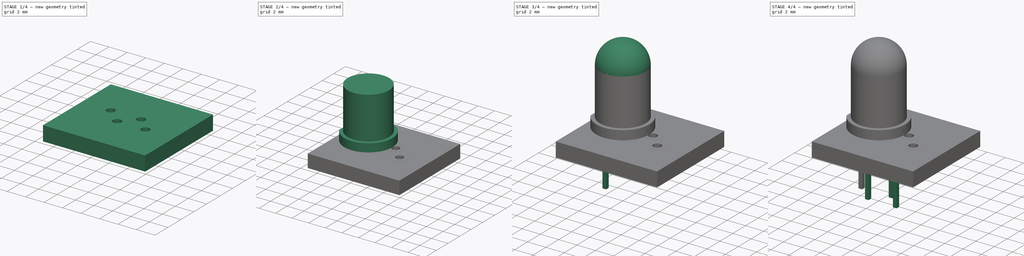
[diagram: build sequence overview — one tinted view per stage of 4, left to right]
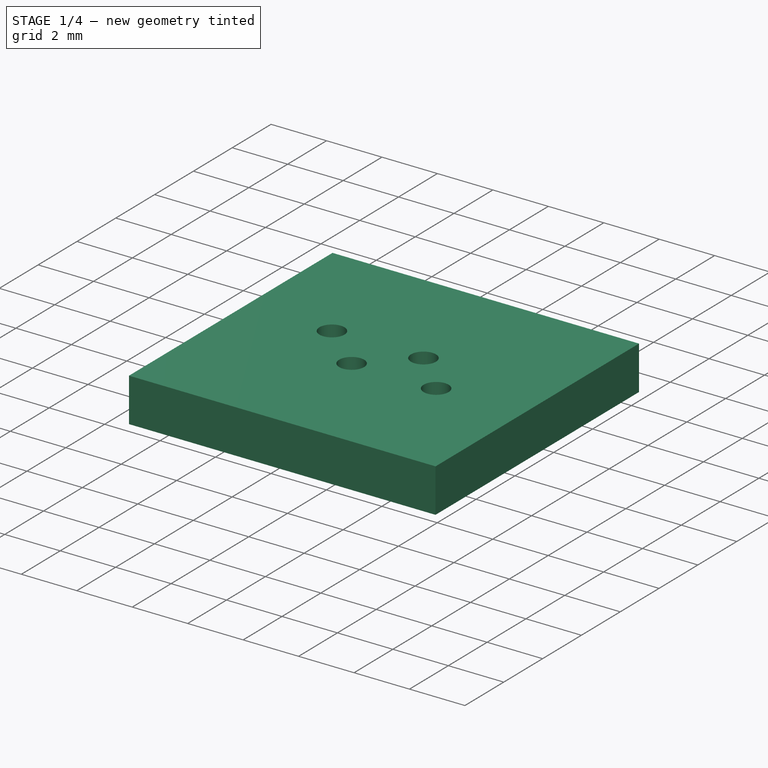
[diagram: stage 1 of 4 — iso view after this stage's code; geometry added in this stage tinted green]
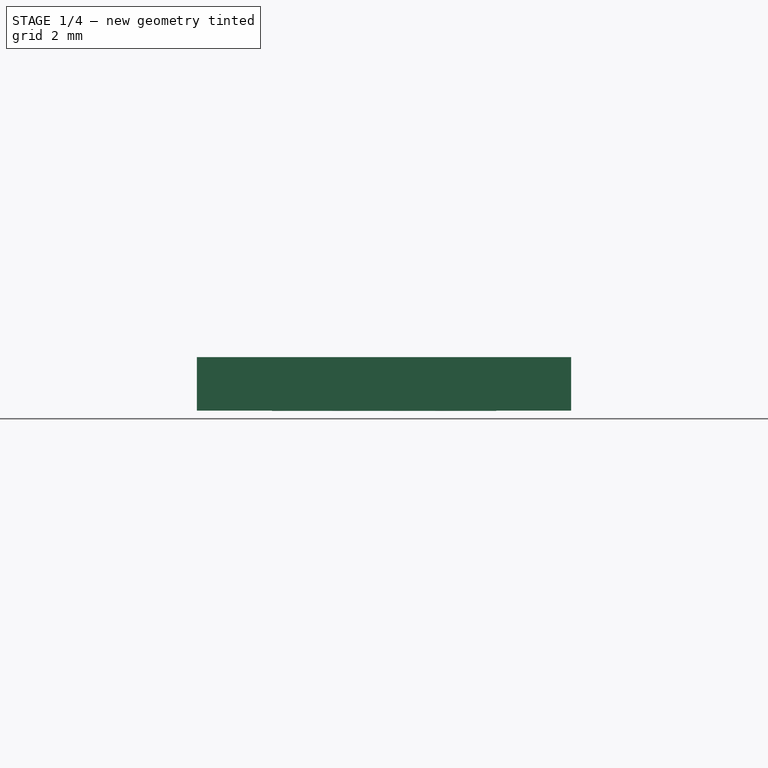
[diagram: stage 1 of 4 — front view after this stage's code; geometry added in this stage tinted green]
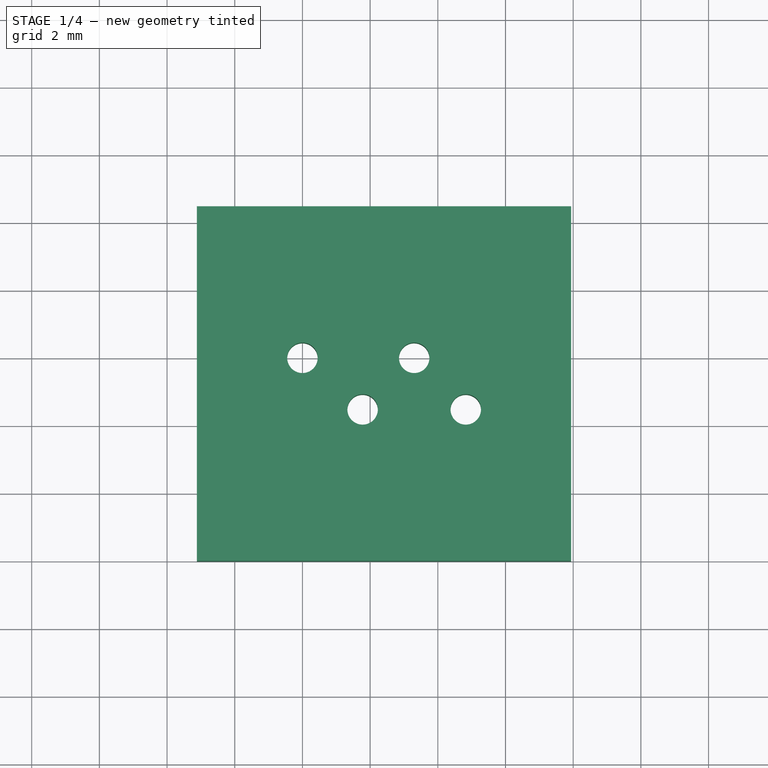
[diagram: stage 1 of 4 — top view after this stage's code; geometry added in this stage tinted green]
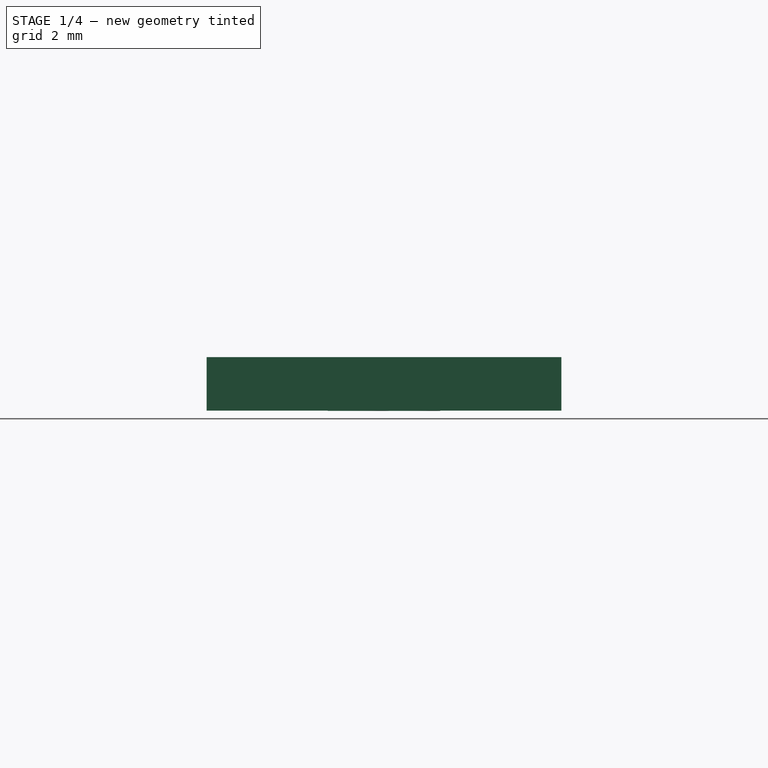
[diagram: stage 1 of 4 — right view after this stage's code; geometry added in this stage tinted green]
FCSTD DOCUMENT  (FreeCAD 0.18.4R)
Label: LED_D5.0mm-4_RGB_Staggered_Pins
License: All rights reserved
LicenseURL: http://en.wikipedia.org/wiki/All_rights_reserved
objects: Sketcher::SketchObject×13, Part::FeaturePython×7, PartDesign::Plane×5, PartDesign::AdditivePipe×4, PartDesign::Pad×2, PartDesign::Revolution×1, PartDesign::Body×1, App::Part×1, App::DocumentObjectGroup×1, Part::Feature×1
note: 41 computed .brp shape members not serialized (recipe doc carries the construction recipe); baked Part::Feature solids carry a one-line shape summary decoded from their .brp

FEATURE [Part::FeaturePython] BotPads  # a2plus imported part (geometry in sourceFile) (typed FeaturePython)
  fixedPosition = true
FEATURE [Part::FeaturePython] THPs  label="PTHs"  # a2plus imported part (geometry in sourceFile) (typed FeaturePython)
  fixedPosition = true
FEATURE [Part::FeaturePython] newPCB  label="Pcb"  # a2plus imported part (geometry in sourceFile) (typed FeaturePython)
  fixedPosition = true
FEATURE [App::DocumentObjectGroup] LED_D5_0mm_4_RGB_Staggered_Pins_fp
  Group = -> [FCrtYd_lines,FFab_lines,Filk_lines,TopPads,BotPads,THPs,newPCB]
FEATURE [Part::Feature] Shape  label="LED_D5.0mm-4_RGB_Staggered_Pins"
  shape: bbox 5.513 x 5.8 x 15.6 mm, 58 faces (baked)
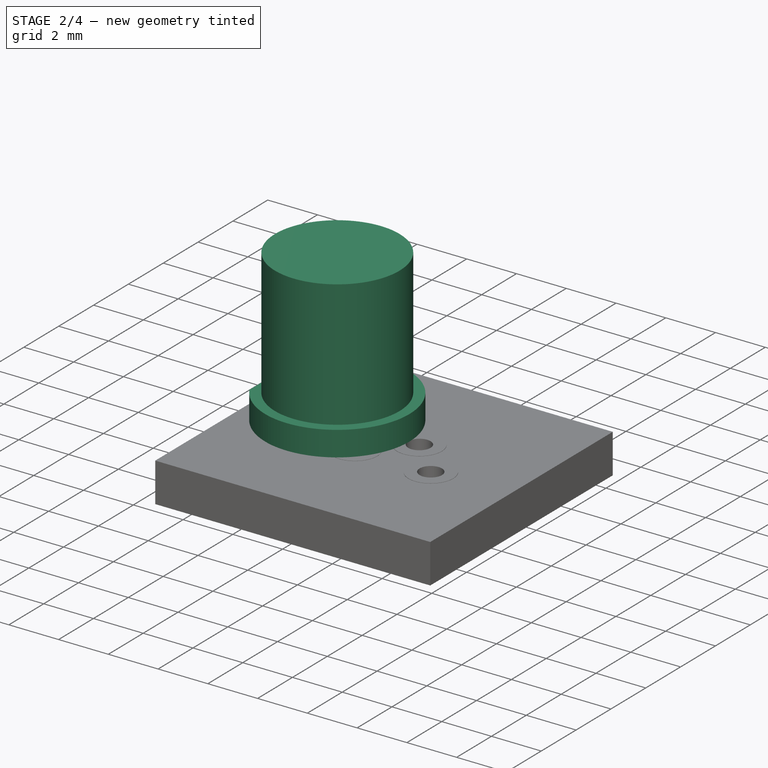
[diagram: stage 2 of 4 — iso view after this stage's code; geometry added in this stage tinted green]
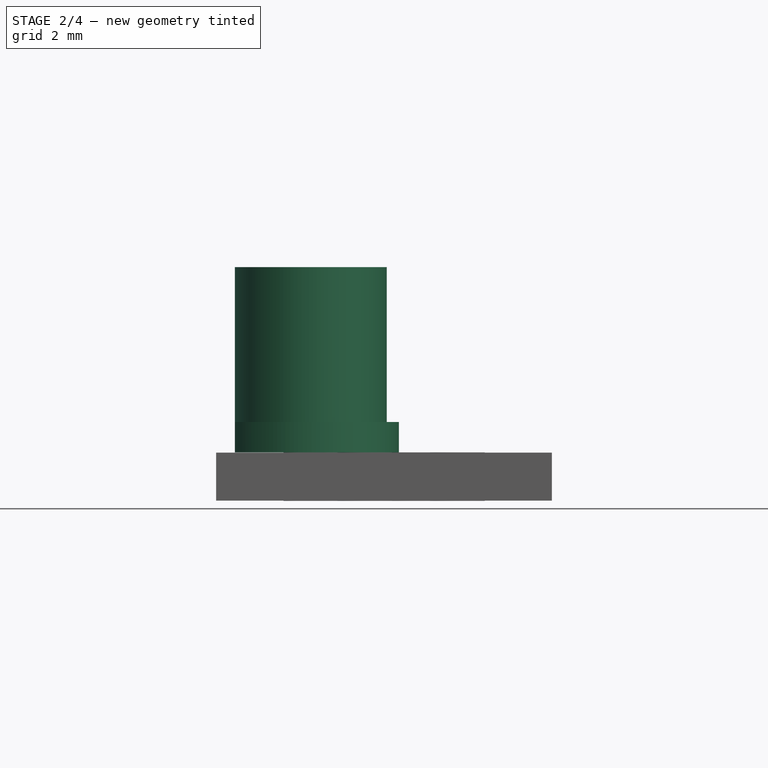
[diagram: stage 2 of 4 — front view after this stage's code; geometry added in this stage tinted green]
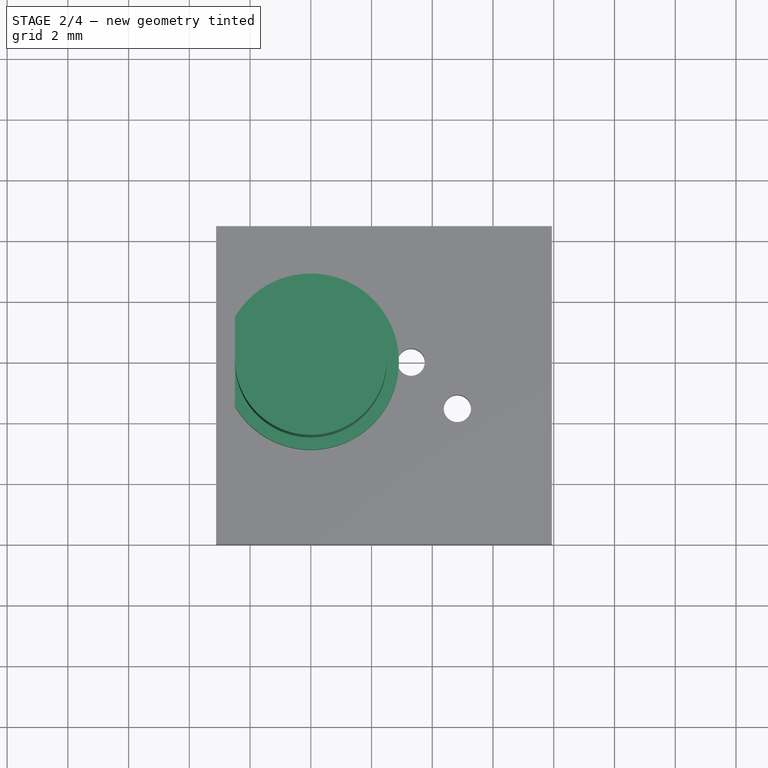
[diagram: stage 2 of 4 — top view after this stage's code; geometry added in this stage tinted green]
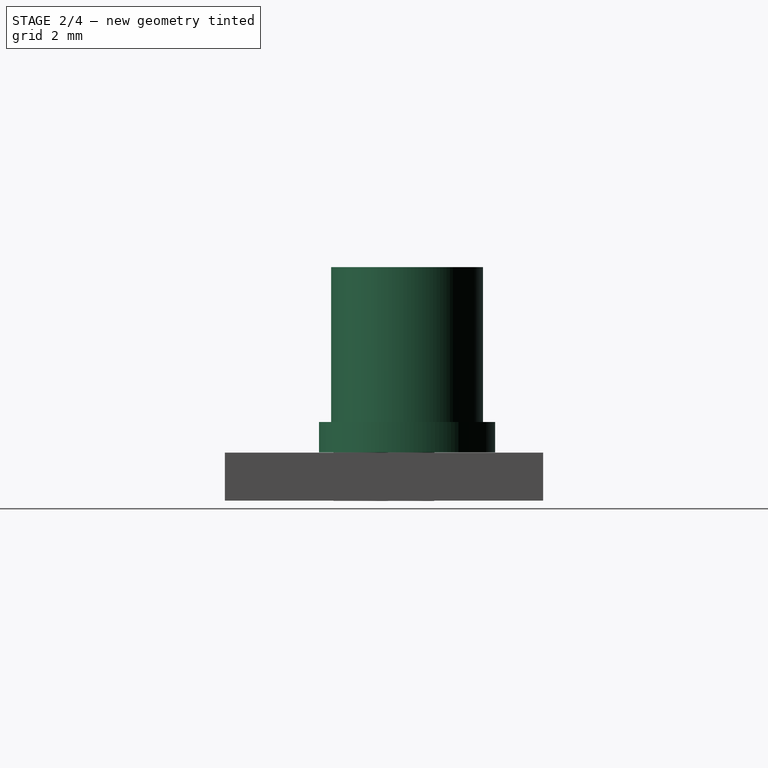
[diagram: stage 2 of 4 — right view after this stage's code; geometry added in this stage tinted green]
FEATURE [Sketcher::SketchObject] Sketch
  MapMode = 5
  Support = -> [XY_Plane]
  sketch-geometry (3):
    g0: ArcOfCircle CenterX=0 CenterY=0 CenterZ=0 NormalX=0 NormalY=0 NormalZ=1 AngleXU=0 Radius=2.9 StartAngle=3.67305 EndAngle=8.89332
    g1: LineSegment StartX=-2.5 StartY=-1.46969 StartZ=0 EndX=-2.5 EndY=1.46969 EndZ=0
    g2: Circle [constr] CenterX=0 CenterY=0 CenterZ=0 NormalX=0 NormalY=0 NormalZ=1 AngleXU=0 Radius=2.5
  constraints (8):
    c: Coincident(g0,g-1)
    c: Coincident(g1,g0)
    c: Coincident(g1,g0)
    c: Vertical(g1)
    c: Radius(g0) = 2.9
    c: Coincident(g2,g0)
    c: Radius(g2) = 2.5
    c: Tangent(g2,g1)
FEATURE [PartDesign::Pad] Pad
  Length = 1
  Length2 = 100
  Profile = -> Sketch
  Type = 0
FEATURE [Sketcher::SketchObject] Sketch001
  MapMode = 5
  Placement = pos=(0,0,1) rot=(0,0,1;0rad)
  Support = -> [Pad]
  sketch-geometry (1):
    g0: Circle CenterX=0 CenterY=0 CenterZ=0 NormalX=0 NormalY=0 NormalZ=1 AngleXU=0 Radius=2.5
  constraints (2):
    c: Coincident(g0,g-1)
    c: Radius(g0) = 2.5
FEATURE [PartDesign::Pad] Pad001
  BaseFeature = -> Pad
  Length = 5.1
  Length2 = 100
  Profile = -> Sketch001
  Type = 0
FEATURE [PartDesign::Body] Body
  Group = -> [Sketch,Pad,Sketch001,Pad001,Sketch002,Revolution,Sketch003,DatumPlane,Sketch004,DatumPlane001,Sketch005,Sketch006,AdditivePipe,DatumPlane002,Sketch007,Sketch008,AdditivePipe001,DatumPlane003,Sketch009,Sketch010,AdditivePipe002,DatumPlane004,Sketch011,Sketch012,AdditivePipe003]
  Origin = -> Origin
  Tip = -> AdditivePipe003
FEATURE [App::Part] Part
  Group = -> [Body]
  Origin = -> Origin001
FEATURE [Part::FeaturePython] FCrtYd_lines  label="FCrtYd"  # a2plus imported part (geometry in sourceFile) (typed FeaturePython)
  fixedPosition = true
FEATURE [Part::FeaturePython] FFab_lines  label="FFab"  # a2plus imported part (geometry in sourceFile) (typed FeaturePython)
  fixedPosition = true
FEATURE [Part::FeaturePython] Filk_lines  label="FrontSilk"  # a2plus imported part (geometry in sourceFile) (typed FeaturePython)
  fixedPosition = true
FEATURE [Part::FeaturePython] TopPads  # a2plus imported part (geometry in sourceFile) (typed FeaturePython)
  fixedPosition = true
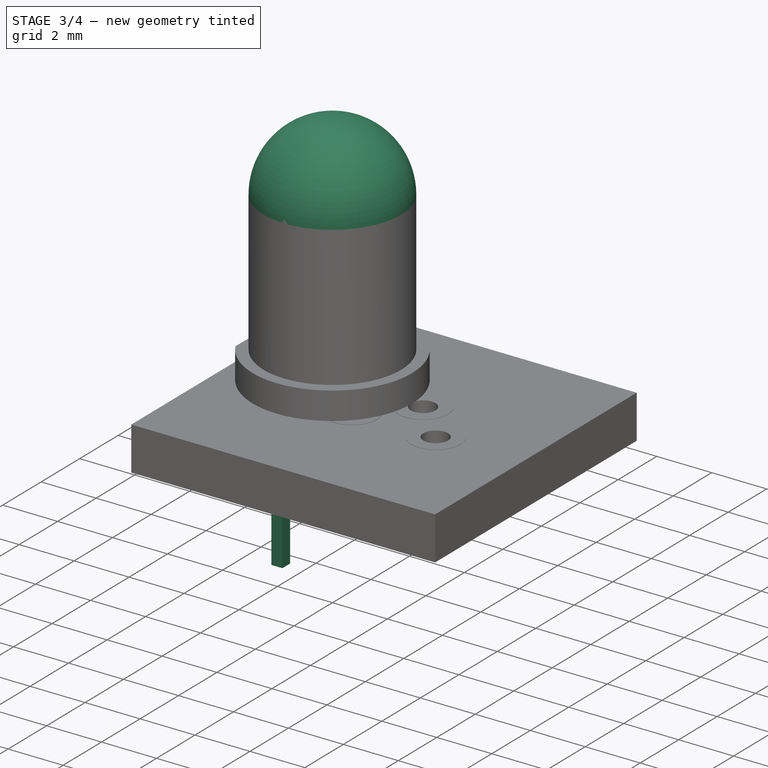
[diagram: stage 3 of 4 — iso view after this stage's code; geometry added in this stage tinted green]
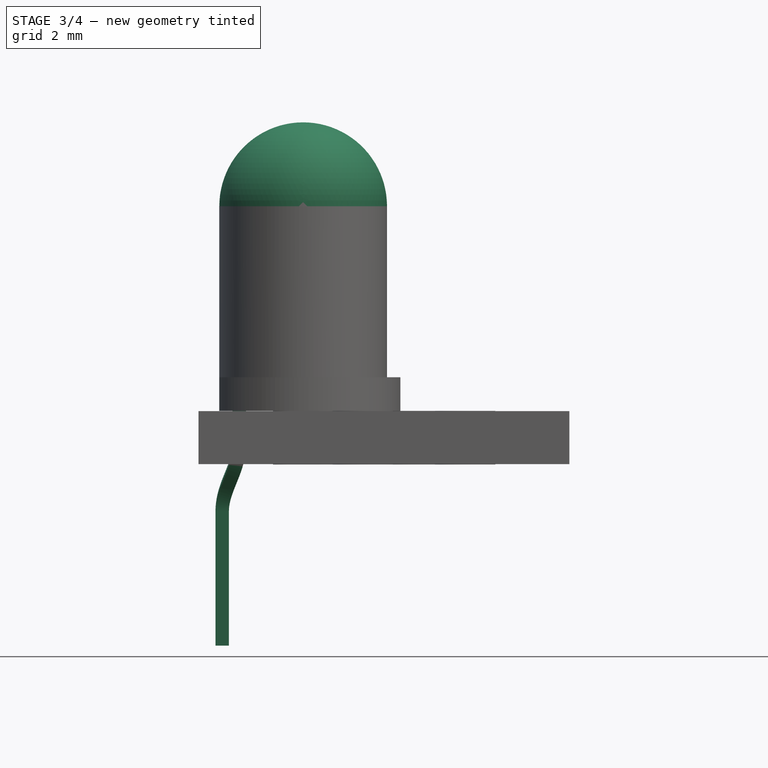
[diagram: stage 3 of 4 — front view after this stage's code; geometry added in this stage tinted green]
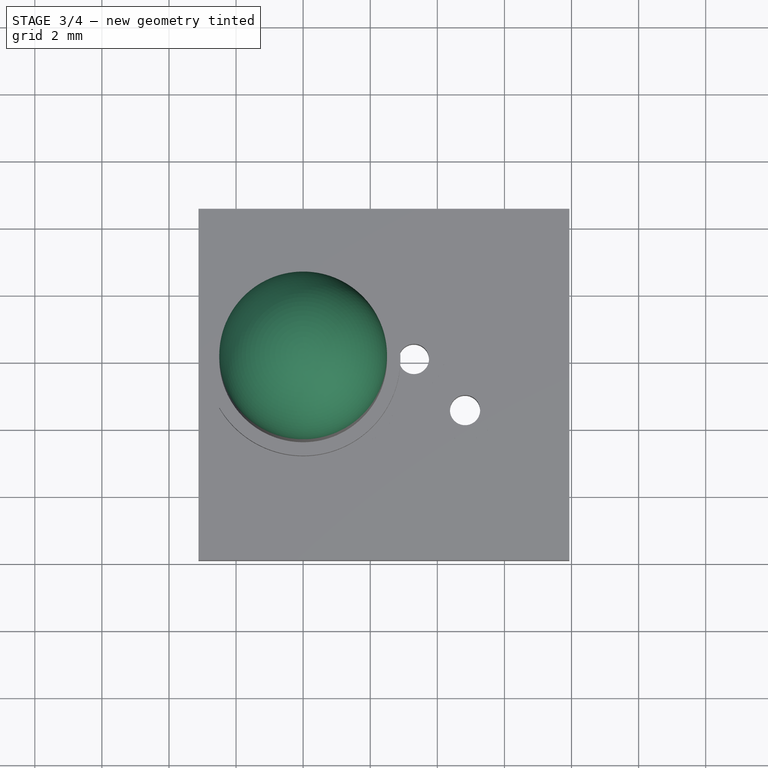
[diagram: stage 3 of 4 — top view after this stage's code; geometry added in this stage tinted green]
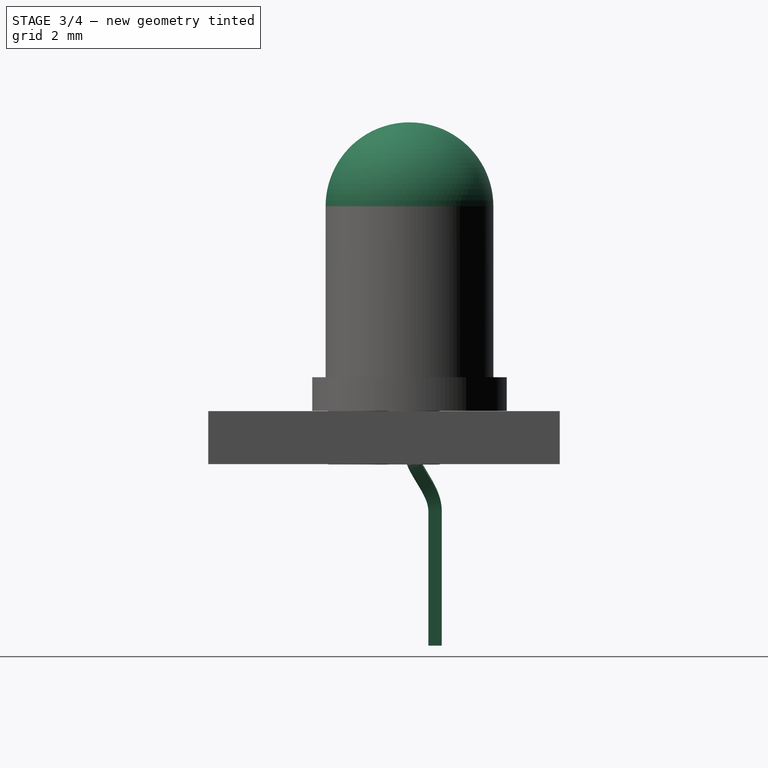
[diagram: stage 3 of 4 — right view after this stage's code; geometry added in this stage tinted green]
FEATURE [Sketcher::SketchObject] Sketch002
  ExternalGeometry = -> [Pad001]
  MapMode = 5
  Placement = pos=(0,0,0) rot=(0.57735,0.57735,0.57735;2.0944rad)
  Support = -> [YZ_Plane]
  sketch-geometry (4):
    g0: GeomPoint X=0 Y=6.1 Z=0
    g1: LineSegment StartX=0 StartY=6.1 StartZ=0 EndX=-2.5 EndY=6.1 EndZ=0
    g2: ArcOfCircle CenterX=0 CenterY=6.1 CenterZ=0 NormalX=0 NormalY=0 NormalZ=1 AngleXU=0 Radius=2.5 StartAngle=1.5708 EndAngle=3.14159
    g3: LineSegment StartX=2e-16 StartY=8.6 StartZ=0 EndX=0 EndY=6.1 EndZ=0
  constraints (10):
    c: PointOnObject(g0,g-3)
    c: PointOnObject(g0,g-2)
    c: Coincident(g1,g0)
    c: Horizontal(g1)
    c: Distance(g1) = 2.5
    c: Coincident(g2,g0)
    c: PointOnObject(g2,g-2)
    c: Coincident(g2,g1)
    c: Coincident(g3,g2)
    c: Coincident(g3,g0)
FEATURE [PartDesign::Revolution] Revolution
  Angle = 360
  Axis = (-2e-16,3e-16,1)
  Base = (0,0,0)
  BaseFeature = -> Pad001
  Profile = -> Sketch002
  ReferenceAxis = -> Sketch002 [V_Axis]
FEATURE [Sketcher::SketchObject] Sketch003
  ExternalGeometry = -> [Revolution]
  MapMode = 5
  Placement = pos=(0,0,0) rot=(1,0,0;3.14159rad)
  Support = -> [Revolution]
  sketch-geometry (32):
    g0: LineSegment StartX=-2.105 StartY=0.2 StartZ=0 EndX=-1.705 EndY=0.2 EndZ=0
    g1: LineSegment StartX=-1.705 StartY=0.2 StartZ=0 EndX=-1.705 EndY=-0.2 EndZ=0
    g2: LineSegment StartX=-1.705 StartY=-0.2 StartZ=0 EndX=-2.105 EndY=-0.2 EndZ=0
    g3: LineSegment StartX=-2.105 StartY=-0.2 StartZ=0 EndX=-2.105 EndY=0.2 EndZ=0
    g4: LineSegment StartX=-0.835 StartY=0.2 StartZ=0 EndX=-0.435 EndY=0.2 EndZ=0
    g5: LineSegment StartX=-0.435 StartY=0.2 StartZ=0 EndX=-0.435 EndY=-0.2 EndZ=0
    g6: LineSegment StartX=-0.435 StartY=-0.2 StartZ=0 EndX=-0.835 EndY=-0.2 EndZ=0
    g7: LineSegment StartX=-0.835 StartY=-0.2 StartZ=0 EndX=-0.835 EndY=0.2 EndZ=0
    g8: LineSegment StartX=0.435 StartY=-0.2 StartZ=0 EndX=0.835 EndY=-0.2 EndZ=0
    g9: LineSegment StartX=0.835 StartY=-0.2 StartZ=0 EndX=0.835 EndY=0.2 EndZ=0
    g10: LineSegment StartX=0.835 StartY=0.2 StartZ=0 EndX=0.435 EndY=0.2 EndZ=0
    g11: LineSegment StartX=0.435 StartY=0.2 StartZ=0 EndX=0.435 EndY=-0.2 EndZ=0
    g12: LineSegment StartX=1.705 StartY=0.2 StartZ=0 EndX=2.105 EndY=0.2 EndZ=0
    g13: LineSegment StartX=2.105 StartY=0.2 StartZ=0 EndX=2.105 EndY=-0.2 EndZ=0
    g14: LineSegment StartX=2.105 StartY=-0.2 StartZ=0 EndX=1.705 EndY=-0.2 EndZ=0
    g15: LineSegment StartX=1.705 StartY=-0.2 StartZ=0 EndX=1.705 EndY=0.2 EndZ=0
    g16: LineSegment [constr] StartX=-1.705 StartY=0.2 StartZ=0 EndX=-0.835 EndY=0.2 EndZ=0
    g17: LineSegment [constr] StartX=-0.435 StartY=0.2 StartZ=0 EndX=0.435 EndY=0.2 EndZ=0
    g18: LineSegment [constr] StartX=0.835 StartY=0.2 StartZ=0 EndX=1.705 EndY=0.2 EndZ=0
    g19: LineSegment StartX=-2.105 StartY=0.2 StartZ=0 EndX=-1.705 EndY=-0.2 EndZ=0
    g20: LineSegment StartX=-1.705 StartY=0.2 StartZ=0 EndX=-1.905 EndY=0 EndZ=0
    g21: LineSegment StartX=-0.835 StartY=0.2 StartZ=0 EndX=-0.435 EndY=-0.2 EndZ=0
    g22: LineSegment StartX=-0.435 StartY=0.2 StartZ=0 EndX=-0.635 EndY=0 EndZ=0
    g23: LineSegment [constr] StartX=-0.435 StartY=0.2 StartZ=0 EndX=0 EndY=0 EndZ=0
    g24: LineSegment [constr] StartX=0.435 StartY=-0.2 StartZ=0 EndX=0 EndY=0 EndZ=0
    g25: LineSegment [constr] StartX=0 StartY=0 StartZ=0 EndX=0.435 EndY=0.2 EndZ=0
    g26: LineSegment StartX=0.435 StartY=0.2 StartZ=0 EndX=0.635 EndY=0 EndZ=0
    g27: LineSegment StartX=0.635 StartY=0 StartZ=0 EndX=0.835 EndY=0.2 EndZ=0
    g28: LineSegment StartX=0.635 StartY=0 StartZ=0 EndX=0.835 EndY=-0.2 EndZ=0
    g29: LineSegment StartX=1.705 StartY=0.2 StartZ=0 EndX=1.905 EndY=0 EndZ=0
    g30: LineSegment StartX=1.905 StartY=0 StartZ=0 EndX=2.105 EndY=0.2 EndZ=0
    g31: LineSegment StartX=1.905 StartY=0 StartZ=0 EndX=1.705 EndY=-0.2 EndZ=0
  constraints (84):
    c: Coincident(g0,g1)
    c: Coincident(g1,g2)
    c: Coincident(g2,g3)
    c: Coincident(g3,g0)
    c: Horizontal(g0)
    c: Horizontal(g2)
    c: Vertical(g1)
    c: Vertical(g3)
    c: Coincident(g4,g5)
    c: Coincident(g5,g6)
    c: Coincident(g6,g7)
    c: Coincident(g7,g4)
    c: Horizontal(g4)
    c: Horizontal(g6)
    c: Vertical(g5)
    c: Vertical(g7)
    c: Coincident(g8,g9)
    c: Coincident(g9,g10)
    c: Coincident(g10,g11)
    c: Coincident(g11,g8)
    c: Horizontal(g8)
    c: Horizontal(g10)
    c: Vertical(g9)
    c: Vertical(g11)
    c: Coincident(g12,g13)
    c: Coincident(g13,g14)
    c: Coincident(g14,g15)
    c: Coincident(g15,g12)
    c: Horizontal(g12)
    c: Horizontal(g14)
    c: Vertical(g13)
    c: Vertical(g15)
    c: Equal(g12,g15)
    c: Equal(g15,g10)
    c: Equal(g10,g11)
    c: Equal(g11,g4)
    c: Equal(g4,g7)
    c: Equal(g7,g0)
    c: Equal(g0,g3)
    c: Coincident(g16,g0)
    c: Coincident(g16,g4)
    c: Coincident(g17,g4)
    c: Coincident(g17,g10)
    c: Coincident(g18,g9)
    c: Coincident(g18,g12)
    c: Equal(g16,g17)
    c: Equal(g17,g18)
    c: Horizontal(g18)
    c: Horizontal(g17)
    c: Horizontal(g16)
    c: Coincident(g19,g0)
    c: Coincident(g19,g1)
    c: Coincident(g20,g0)
    c: PointOnObject(g20,g19)
    c: Perpendicular(g20,g19)
    c: Coincident(g21,g4)
    c: Coincident(g21,g5)
    c: Coincident(g22,g4)
    c: PointOnObject(g22,g21)
    c: Perpendicular(g22,g21)
    c: DistanceX(g20,g22) = 1.27
    c: Distance(g3) = 0.4
    c: Coincident(g23,g4)
    c: Coincident(g23,g-1)
    c: Coincident(g24,g8)
    c: Coincident(g24,g-1)
    c: Coincident(g25,g-1)
    c: Coincident(g25,g10)
    c: Equal(g25,g24)
    c: Equal(g24,g23)
    c: Coincident(g26,g10)
    c: Coincident(g27,g26)
    c: Coincident(g27,g9)
    c: Coincident(g28,g26)
    c: Coincident(g28,g8)
    c: Coincident(g29,g12)
    c: Coincident(g30,g29)
    c: Coincident(g30,g12)
    c: Coincident(g31,g29)
    c: Coincident(g31,g14)
    c: Equal(g29,g30)
    c: Equal(g30,g31)
    c: Equal(g26,g27)
    c: Equal(g27,g28)
FEATURE [PartDesign::Plane] DatumPlane
  AttachmentOffset = pos=(0,0,7) rot=(0,0,1;0rad)
  Length = 24
  MapMode = 5
  Placement = pos=(0,0,-7) rot=(1,0,0;3.14159rad)
  ResizeMode = 0
  Support = -> [Revolution]
  Width = 24
FEATURE [Sketcher::SketchObject] Sketch004
  MapMode = 5
  Placement = pos=(0,0,-7) rot=(1,0,0;3.14159rad)
  Support = -> [DatumPlane]
  sketch-geometry (34):
    g0: LineSegment StartX=-2.613 StartY=-0.562 StartZ=0 EndX=-2.213 EndY=-0.562 EndZ=0
    g1: LineSegment StartX=-2.213 StartY=-0.562 StartZ=0 EndX=-2.213 EndY=-0.962 EndZ=0
    g2: LineSegment StartX=-2.213 StartY=-0.962 StartZ=0 EndX=-2.613 EndY=-0.962 EndZ=0
    g3: LineSegment StartX=-2.613 StartY=-0.962 StartZ=0 EndX=-2.613 EndY=-0.562 EndZ=0
    g4: LineSegment StartX=0.689 StartY=-0.562 StartZ=0 EndX=1.089 EndY=-0.562 EndZ=0
    g5: LineSegment StartX=1.089 StartY=-0.562 StartZ=0 EndX=1.089 EndY=-0.962 EndZ=0
    g6: LineSegment StartX=1.089 StartY=-0.962 StartZ=0 EndX=0.689 EndY=-0.962 EndZ=0
    g7: LineSegment StartX=0.689 StartY=-0.962 StartZ=0 EndX=0.689 EndY=-0.562 EndZ=0
    g8: LineSegment StartX=2.213 StartY=0.962 StartZ=0 EndX=2.613 EndY=0.962 EndZ=0
    g9: LineSegment StartX=2.613 StartY=0.962 StartZ=0 EndX=2.613 EndY=0.562 EndZ=0
    g10: LineSegment StartX=2.613 StartY=0.562 StartZ=0 EndX=2.213 EndY=0.562 EndZ=0
    g11: LineSegment StartX=2.213 StartY=0.562 StartZ=0 EndX=2.213 EndY=0.962 EndZ=0
    g12: LineSegment StartX=-0.835 StartY=0.562 StartZ=0 EndX=-0.435 EndY=0.562 EndZ=0
    g13: LineSegment StartX=-0.435 StartY=0.562 StartZ=0 EndX=-0.435 EndY=0.962 EndZ=0
    g14: LineSegment StartX=-0.435 StartY=0.962 StartZ=0 EndX=-0.835 EndY=0.962 EndZ=0
    g15: LineSegment StartX=-0.835 StartY=0.962 StartZ=0 EndX=-0.835 EndY=0.562 EndZ=0
    g16: LineSegment StartX=-2.613 StartY=-0.562 StartZ=0 EndX=-2.413 EndY=-0.762 EndZ=0
    g17: LineSegment StartX=-2.213 StartY=-0.562 StartZ=0 EndX=-2.413 EndY=-0.762 EndZ=0
    g18: LineSegment StartX=-2.413 StartY=-0.762 StartZ=0 EndX=-2.213 EndY=-0.962 EndZ=0
    g19: LineSegment StartX=0.689 StartY=-0.562 StartZ=0 EndX=0.889 EndY=-0.762 EndZ=0
    g20: LineSegment StartX=0.889 StartY=-0.762 StartZ=0 EndX=1.089 EndY=-0.962 EndZ=0
    g21: LineSegment StartX=0.889 StartY=-0.762 StartZ=0 EndX=1.089 EndY=-0.562 EndZ=0
    g22: LineSegment StartX=-0.835 StartY=0.962 StartZ=0 EndX=-0.635 EndY=0.762 EndZ=0
    g23: LineSegment StartX=-0.635 StartY=0.762 StartZ=0 EndX=-0.435 EndY=0.962 EndZ=0
    g24: LineSegment StartX=-0.635 StartY=0.762 StartZ=0 EndX=-0.435 EndY=0.562 EndZ=0
    g25: LineSegment StartX=2.213 StartY=0.962 StartZ=0 EndX=2.413 EndY=0.762 EndZ=0
    g26: LineSegment StartX=2.413 StartY=0.762 StartZ=0 EndX=2.213 EndY=0.562 EndZ=0
    g27: LineSegment StartX=2.413 StartY=0.762 StartZ=0 EndX=2.613 EndY=0.962 EndZ=0
    g28: LineSegment [constr] StartX=0.889 StartY=-0.762 StartZ=0 EndX=-2.413 EndY=-0.762 EndZ=0
    g29: LineSegment [constr] StartX=-0.635 StartY=0.762 StartZ=0 EndX=2.413 EndY=0.762 EndZ=0
    g30: LineSegment [constr] StartX=-2.413 StartY=-0.762 StartZ=0 EndX=0 EndY=1e-16 EndZ=0
    g31: LineSegment [constr] StartX=0 StartY=0 StartZ=0 EndX=2.413 EndY=0.762 EndZ=0
    g32: LineSegment [constr] StartX=0.889 StartY=-0.762 StartZ=0 EndX=-0.635 EndY=0.762 EndZ=0
    g33: LineSegment [constr] StartX=-0.635 StartY=0.762 StartZ=0 EndX=-2.413 EndY=-0.762 EndZ=0
  constraints (88):
    c: Coincident(g0,g1)
    c: Coincident(g1,g2)
    c: Coincident(g2,g3)
    c: Coincident(g3,g0)
    c: Horizontal(g0)
    c: Horizontal(g2)
    c: Vertical(g1)
    c: Vertical(g3)
    c: Coincident(g4,g5)
    c: Coincident(g5,g6)
    c: Coincident(g6,g7)
    c: Coincident(g7,g4)
    c: Horizontal(g4)
    c: Horizontal(g6)
    c: Vertical(g5)
    c: Vertical(g7)
    c: Coincident(g8,g9)
    c: Coincident(g9,g10)
    c: Coincident(g10,g11)
    c: Coincident(g11,g8)
    c: Horizontal(g8)
    c: Horizontal(g10)
    c: Vertical(g9)
    c: Vertical(g11)
    c: Coincident(g12,g13)
    c: Coincident(g13,g14)
    c: Coincident(g14,g15)
    c: Coincident(g15,g12)
    c: Horizontal(g12)
    c: Horizontal(g14)
    c: Vertical(g13)
    c: Vertical(g15)
    c: Equal(g14,g15)
    c: Equal(g15,g3)
    c: Equal(g3,g0)
    c: Equal(g0,g7)
    c: Equal(g7,g4)
    c: Equal(g4,g11)
    c: Equal(g11,g8)
    c: Distance(g3) = 0.4
    c: Coincident(g16,g0)
    c: Coincident(g17,g0)
    c: Coincident(g17,g16)
    c: Coincident(g18,g16)
    c: Coincident(g18,g1)
    c: Equal(g17,g18)
    c: Equal(g18,g16)
    c: Coincident(g19,g4)
    c: Coincident(g20,g19)
    c: Coincident(g20,g5)
    c: Coincident(g21,g19)
    c: Coincident(g21,g4)
    c: Equal(g20,g21)
    c: Equal(g21,g19)
    c: Coincident(g22,g14)
    c: Coincident(g23,g22)
    c: Coincident(g23,g13)
    c: Coincident(g24,g22)
    c: Coincident(g24,g12)
    c: Equal(g23,g24)
    c: Equal(g24,g22)
    c: Coincident(g25,g8)
    c: Coincident(g26,g25)
    c: Coincident(g26,g10)
    c: Coincident(g27,g25)
    c: Coincident(g27,g8)
    c: Equal(g27,g25)
    c: Equal(g25,g26)
    c: Coincident(g28,g19)
    c: Coincident(g28,g16)
    c: Coincident(g29,g22)
    c: Coincident(g29,g25)
    c: Horizontal(g29)
    c: Horizontal(g28)
    c: Coincident(g30,g16)
    c: Coincident(g31,g30)
    c: Coincident(g31,g25)
    c: Equal(g31,g30)
    c: Parallel(g31,g30)
    c: Coincident(g-1,g30)
    c: Coincident(g32,g19)
    c: Coincident(g32,g22)
    c: Coincident(g33,g22)
    c: Coincident(g33,g16)
    c: DistanceY(g33,g33) = 1.524
    c: DistanceX(g16,g22) = 1.778
    c: DistanceX(g22,g19) = 1.524
    c: DistanceX(g19,g25) = 1.524
FEATURE [PartDesign::Plane] DatumPlane001
  AttachmentOffset = pos=(0,0,0) rot=(0,1,0;1.5708rad)
  Length = 35.4059
  MapMode = 51
  Placement = pos=(-1.905,0,0) rot=(0.315235,0.694026,-0.647268;3.90709rad)
  ResizeMode = 0
  Support = -> [Sketch003,Sketch004]
  Width = 28.7396
FEATURE [Sketcher::SketchObject] Sketch005
  ExternalGeometry = -> [Sketch004,Sketch003]
  MapMode = 5
  Placement = pos=(-1.905,1e-16,0) rot=(0.315235,0.694026,-0.647268;3.90709rad)
  Support = -> [DatumPlane001]
  sketch-geometry (11):
    g0: LineSegment StartX=0 StartY=0 StartZ=0 EndX=-0.129724 EndY=0.99155 EndZ=0
    g1: LineSegment StartX=2.2e-15 StartY=7.05965 StartZ=0 EndX=0.518898 EndY=3.09345 EndZ=0
    g2-g5: Circle [constr] x4 (B-spline internal-alignment scaffolding for g6; pole/knot coordinates omitted)
    g6: BSplineCurve PolesCount=4 KnotsCount=2 Degree=3 IsPeriodic=0
    g7: GeomPoint [constr] X=-0.129724 Y=0.99155 Z=0
    g8: GeomPoint [constr] X=0.518898 Y=3.09345 Z=0
    g9: LineSegment [constr] StartX=0.616191 StartY=2.34979 StartZ=0 EndX=0.518898 EndY=3.09345 EndZ=0
    g10: LineSegment [constr] StartX=-0.129724 StartY=0.99155 StartZ=0 EndX=-0.227018 EndY=1.73521 EndZ=0
  constraints (23):
    c: Perpendicular(g0,g-6)
    c: Perpendicular(g1,g-3)
    c: Coincident(g-4,g1)
    c: Coincident(g-1,g0)
    c: Distance(g0) = 1
    c: Coincident(g6,g0)
    c: Radius(g2) = 0.2
    c: Equal(g2,g3)
    c: Equal(g2,g4)
    c: Equal(g2,g5)
    c: Coincident(g6,g1)
    c: InternalAlignment(g2-g5 -> g6) x4
    c: InternalAlignment(g7,g6)
    c: InternalAlignment(g8,g6)
    c: Coincident(g9,g4)
    c: Coincident(g9,g1)
    c: Coincident(g10,g0)
    c: Coincident(g10,g3)
    c: Parallel(g10,g0)
    c: Parallel(g9,g1)
    c: Distance(g9) = 0.75
    c: Equal(g9,g10)
    c: Distance(g1) = 4
FEATURE [Sketcher::SketchObject] Sketch006
  ExternalGeometry = -> [Revolution]
  MapMode = 5
  Placement = pos=(0,0,0) rot=(1,0,0;3.14159rad)
  Support = -> [Revolution]
  sketch-geometry (32):
    g0: LineSegment StartX=-2.105 StartY=0.2 StartZ=0 EndX=-1.705 EndY=0.2 EndZ=0
    g1: LineSegment StartX=-1.705 StartY=0.2 StartZ=0 EndX=-1.705 EndY=-0.2 EndZ=0
    g2: LineSegment StartX=-1.705 StartY=-0.2 StartZ=0 EndX=-2.105 EndY=-0.2 EndZ=0
    g3: LineSegment StartX=-2.105 StartY=-0.2 StartZ=0 EndX=-2.105 EndY=0.2 EndZ=0
    g4: LineSegment [constr] StartX=-0.835 StartY=0.2 StartZ=0 EndX=-0.435 EndY=0.2 EndZ=0
    g5: LineSegment [constr] StartX=-0.435 StartY=0.2 StartZ=0 EndX=-0.435 EndY=-0.2 EndZ=0
    g6: LineSegment [constr] StartX=-0.435 StartY=-0.2 StartZ=0 EndX=-0.835 EndY=-0.2 EndZ=0
    g7: LineSegment [constr] StartX=-0.835 StartY=-0.2 StartZ=0 EndX=-0.835 EndY=0.2 EndZ=0
    g8: LineSegment [constr] StartX=0.435 StartY=-0.2 StartZ=0 EndX=0.835 EndY=-0.2 EndZ=0
    g9: LineSegment [constr] StartX=0.835 StartY=-0.2 StartZ=0 EndX=0.835 EndY=0.2 EndZ=0
    g10: LineSegment [constr] StartX=0.835 StartY=0.2 StartZ=0 EndX=0.435 EndY=0.2 EndZ=0
    g11: LineSegment [constr] StartX=0.435 StartY=0.2 StartZ=0 EndX=0.435 EndY=-0.2 EndZ=0
    g12: LineSegment [constr] StartX=1.705 StartY=0.2 StartZ=0 EndX=2.105 EndY=0.2 EndZ=0
    g13: LineSegment [constr] StartX=2.105 StartY=0.2 StartZ=0 EndX=2.105 EndY=-0.2 EndZ=0
    g14: LineSegment [constr] StartX=2.105 StartY=-0.2 StartZ=0 EndX=1.705 EndY=-0.2 EndZ=0
    g15: LineSegment [constr] StartX=1.705 StartY=-0.2 StartZ=0 EndX=1.705 EndY=0.2 EndZ=0
    g16: LineSegment [constr] StartX=-1.705 StartY=0.2 StartZ=0 EndX=-0.835 EndY=0.2 EndZ=0
    g17: LineSegment [constr] StartX=-0.435 StartY=0.2 StartZ=0 EndX=0.435 EndY=0.2 EndZ=0
    g18: LineSegment [constr] StartX=0.835 StartY=0.2 StartZ=0 EndX=1.705 EndY=0.2 EndZ=0
    g19: LineSegment [constr] StartX=-2.105 StartY=0.2 StartZ=0 EndX=-1.705 EndY=-0.2 EndZ=0
    g20: LineSegment [constr] StartX=-1.705 StartY=0.2 StartZ=0 EndX=-1.905 EndY=0 EndZ=0
    g21: LineSegment [constr] StartX=-0.835 StartY=0.2 StartZ=0 EndX=-0.435 EndY=-0.2 EndZ=0
    g22: LineSegment [constr] StartX=-0.435 StartY=0.2 StartZ=0 EndX=-0.635 EndY=0 EndZ=0
    g23: LineSegment [constr] StartX=-0.435 StartY=0.2 StartZ=0 EndX=0 EndY=0 EndZ=0
    g24: LineSegment [constr] StartX=0.435 StartY=-0.2 StartZ=0 EndX=0 EndY=0 EndZ=0
    g25: LineSegment [constr] StartX=0 StartY=0 StartZ=0 EndX=0.435 EndY=0.2 EndZ=0
    g26: LineSegment [constr] StartX=0.435 StartY=0.2 StartZ=0 EndX=0.635 EndY=0 EndZ=0
    g27: LineSegment [constr] StartX=0.635 StartY=0 StartZ=0 EndX=0.835 EndY=0.2 EndZ=0
    g28: LineSegment [constr] StartX=0.635 StartY=0 StartZ=0 EndX=0.835 EndY=-0.2 EndZ=0
    g29: LineSegment [constr] StartX=1.705 StartY=0.2 StartZ=0 EndX=1.905 EndY=0 EndZ=0
    g30: LineSegment [constr] StartX=1.905 StartY=0 StartZ=0 EndX=2.105 EndY=0.2 EndZ=0
    g31: LineSegment [constr] StartX=1.905 StartY=0 StartZ=0 EndX=1.705 EndY=-0.2 EndZ=0
  constraints (84):
    c: Coincident(g0,g1)
    c: Coincident(g1,g2)
    c: Coincident(g2,g3)
    c: Coincident(g3,g0)
    c: Horizontal(g0)
    c: Horizontal(g2)
    c: Vertical(g1)
    c: Vertical(g3)
    c: Coincident(g4,g5)
    c: Coincident(g5,g6)
    c: Coincident(g6,g7)
    c: Coincident(g7,g4)
    c: Horizontal(g4)
    c: Horizontal(g6)
    c: Vertical(g5)
    c: Vertical(g7)
    c: Coincident(g8,g9)
    c: Coincident(g9,g10)
    c: Coincident(g10,g11)
    c: Coincident(g11,g8)
    c: Horizontal(g8)
    c: Horizontal(g10)
    c: Vertical(g9)
    c: Vertical(g11)
    c: Coincident(g12,g13)
    c: Coincident(g13,g14)
    c: Coincident(g14,g15)
    c: Coincident(g15,g12)
    c: Horizontal(g12)
    c: Horizontal(g14)
    c: Vertical(g13)
    c: Vertical(g15)
    c: Equal(g12,g15)
    c: Equal(g15,g10)
    c: Equal(g10,g11)
    c: Equal(g11,g4)
    c: Equal(g4,g7)
    c: Equal(g7,g0)
    c: Equal(g0,g3)
    c: Coincident(g16,g0)
    c: Coincident(g16,g4)
    c: Coincident(g17,g4)
    c: Coincident(g17,g10)
    c: Coincident(g18,g9)
    c: Coincident(g18,g12)
    c: Equal(g16,g17)
    c: Equal(g17,g18)
    c: Horizontal(g18)
    c: Horizontal(g17)
    c: Horizontal(g16)
    c: Coincident(g19,g0)
    c: Coincident(g19,g1)
    c: Coincident(g20,g0)
    c: PointOnObject(g20,g19)
    c: Perpendicular(g20,g19)
    c: Coincident(g21,g4)
    c: Coincident(g21,g5)
    c: Coincident(g22,g4)
    c: PointOnObject(g22,g21)
    c: Perpendicular(g22,g21)
    c: DistanceX(g20,g22) = 1.27
    c: Distance(g3) = 0.4
    c: Coincident(g23,g4)
    c: Coincident(g23,g-1)
    c: Coincident(g24,g8)
    c: Coincident(g24,g-1)
    c: Coincident(g25,g-1)
    c: Coincident(g25,g10)
    c: Equal(g25,g24)
    c: Equal(g24,g23)
    c: Coincident(g26,g10)
    c: Coincident(g27,g26)
    c: Coincident(g27,g9)
    c: Coincident(g28,g26)
    c: Coincident(g28,g8)
    c: Coincident(g29,g12)
    c: Coincident(g30,g29)
    c: Coincident(g30,g12)
    c: Coincident(g31,g29)
    c: Coincident(g31,g14)
    c: Equal(g29,g30)
    c: Equal(g30,g31)
    c: Equal(g26,g27)
    c: Equal(g27,g28)
FEATURE [PartDesign::AdditivePipe] AdditivePipe
  AuxilleryCurvelinear = true
  AuxillerySpineTangent = false
  BaseFeature = -> Revolution
  Binormal = (0,0,0)
  Mode = 0
  Profile = -> Sketch006
  Spine = -> Sketch005
  SpineTangent = false
  Transformation = 0
  Transition = 0
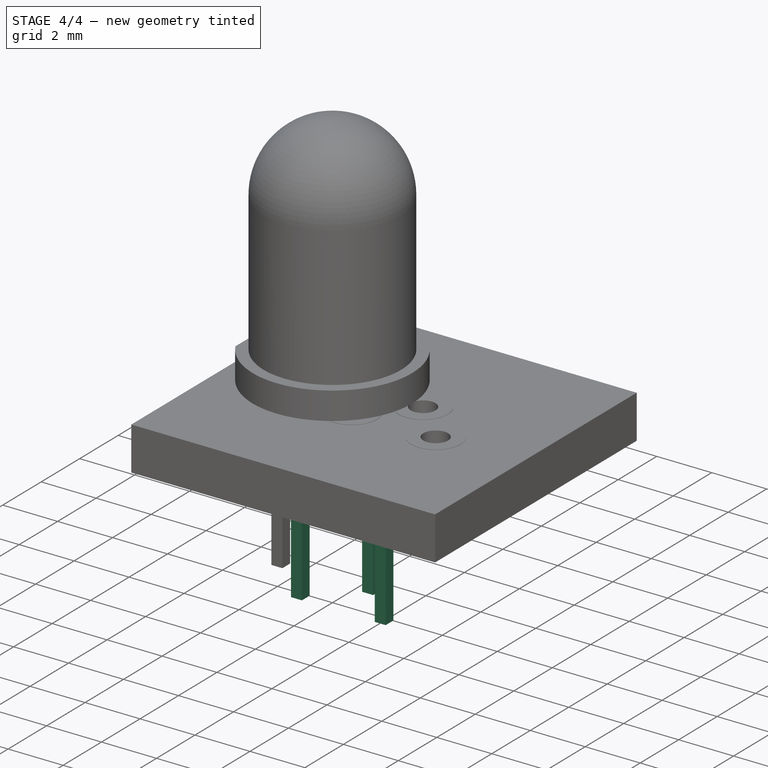
[diagram: stage 4 of 4 — iso view after this stage's code; geometry added in this stage tinted green]
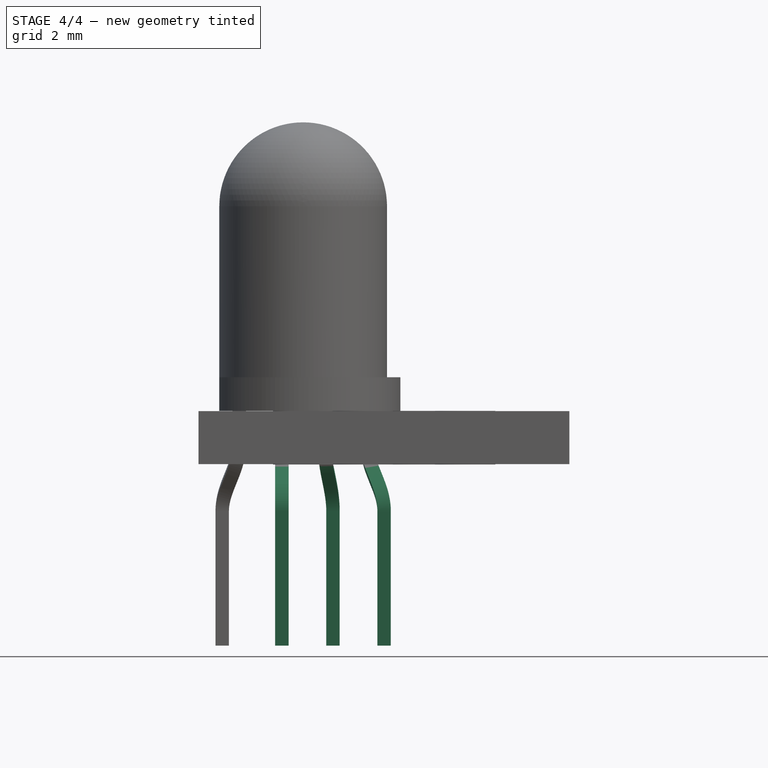
[diagram: stage 4 of 4 — front view after this stage's code; geometry added in this stage tinted green]
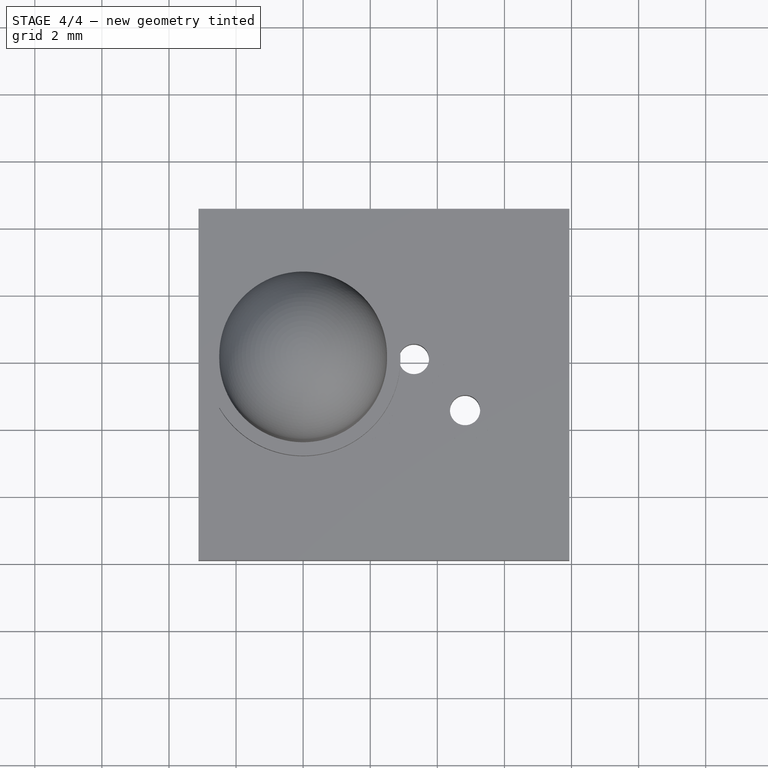
[diagram: stage 4 of 4 — top view after this stage's code; geometry added in this stage tinted green]
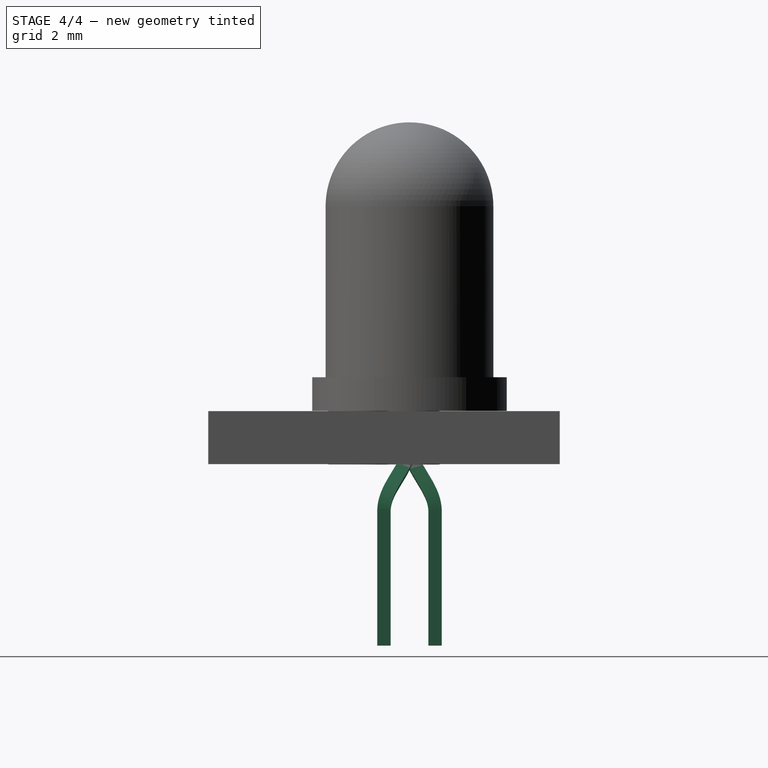
[diagram: stage 4 of 4 — right view after this stage's code; geometry added in this stage tinted green]
FEATURE [PartDesign::Plane] DatumPlane002
  AttachmentOffset = pos=(0,0,0) rot=(0,1,0;1.5708rad)
  Length = 26.4563
  MapMode = 51
  Placement = pos=(-0.635,0,0) rot=(-0.597113,0.535641,-0.597113;2.15809rad)
  ResizeMode = 0
  Support = -> [Sketch003,Sketch004]
  Width = 26.4563
FEATURE [Sketcher::SketchObject] Sketch007
  ExternalGeometry = -> [Sketch004,Sketch003]
  MapMode = 5
  Placement = pos=(-0.635,0,0) rot=(0.597113,-0.535641,0.597113;4.1251rad)
  Support = -> [DatumPlane002]
  sketch-geometry (11):
    g0: LineSegment StartX=0 StartY=0 StartZ=0 EndX=-0.108218 EndY=0.994127 EndZ=0
    g1: LineSegment StartX=-8e-16 StartY=7.04135 StartZ=0 EndX=0.432871 EndY=3.06484 EndZ=0
    g2-g5: Circle [constr] x4 (B-spline internal-alignment scaffolding for g6; pole/knot coordinates omitted)
    g6: BSplineCurve PolesCount=4 KnotsCount=2 Degree=3 IsPeriodic=0
    g7: GeomPoint [constr] X=-0.108218 Y=0.994127 Z=0
    g8: GeomPoint [constr] X=0.432871 Y=3.06484 Z=0
    g9: LineSegment [constr] StartX=0.432871 StartY=3.06484 StartZ=0 EndX=0.514035 EndY=2.31925 EndZ=0
    g10: LineSegment [constr] StartX=-0.108218 StartY=0.994127 StartZ=0 EndX=-0.189381 EndY=1.73972 EndZ=0
  constraints (23):
    c: Coincident(g0,g-1)
    c: Coincident(g1,g-4)
    c: Perpendicular(g-4,g1)
    c: Perpendicular(g0,g-6)
    c: Coincident(g6,g0)
    c: Radius(g2) = 0.1
    c: Equal(g2,g3)
    c: Equal(g2,g4)
    c: Equal(g2,g5)
    c: Coincident(g6,g1)
    c: InternalAlignment(g2-g5 -> g6) x4
    c: InternalAlignment(g7,g6)
    c: InternalAlignment(g8,g6)
    c: Coincident(g9,g1)
    c: Coincident(g9,g4)
    c: Coincident(g10,g0)
    c: Coincident(g10,g3)
    c: Equal(g10,g9)
    c: Parallel(g9,g1)
    c: Parallel(g0,g10)
    c: Distance(g9) = 0.75
    c: Distance(g1) = 4
    c: Distance(g0) = 1
FEATURE [Sketcher::SketchObject] Sketch008
  ExternalGeometry = -> [Revolution]
  MapMode = 5
  Placement = pos=(0,0,0) rot=(1,0,0;3.14159rad)
  Support = -> [Revolution]
  sketch-geometry (32):
    g0: LineSegment [constr] StartX=-2.105 StartY=0.2 StartZ=0 EndX=-1.705 EndY=0.2 EndZ=0
    g1: LineSegment [constr] StartX=-1.705 StartY=0.2 StartZ=0 EndX=-1.705 EndY=-0.2 EndZ=0
    g2: LineSegment [constr] StartX=-1.705 StartY=-0.2 StartZ=0 EndX=-2.105 EndY=-0.2 EndZ=0
    g3: LineSegment [constr] StartX=-2.105 StartY=-0.2 StartZ=0 EndX=-2.105 EndY=0.2 EndZ=0
    g4: LineSegment StartX=-0.835 StartY=0.2 StartZ=0 EndX=-0.435 EndY=0.2 EndZ=0
    g5: LineSegment StartX=-0.435 StartY=0.2 StartZ=0 EndX=-0.435 EndY=-0.2 EndZ=0
    g6: LineSegment StartX=-0.435 StartY=-0.2 StartZ=0 EndX=-0.835 EndY=-0.2 EndZ=0
    g7: LineSegment StartX=-0.835 StartY=-0.2 StartZ=0 EndX=-0.835 EndY=0.2 EndZ=0
    g8: LineSegment [constr] StartX=0.435 StartY=-0.2 StartZ=0 EndX=0.835 EndY=-0.2 EndZ=0
    g9: LineSegment [constr] StartX=0.835 StartY=-0.2 StartZ=0 EndX=0.835 EndY=0.2 EndZ=0
    g10: LineSegment [constr] StartX=0.835 StartY=0.2 StartZ=0 EndX=0.435 EndY=0.2 EndZ=0
    g11: LineSegment [constr] StartX=0.435 StartY=0.2 StartZ=0 EndX=0.435 EndY=-0.2 EndZ=0
    g12: LineSegment [constr] StartX=1.705 StartY=0.2 StartZ=0 EndX=2.105 EndY=0.2 EndZ=0
    g13: LineSegment [constr] StartX=2.105 StartY=0.2 StartZ=0 EndX=2.105 EndY=-0.2 EndZ=0
    g14: LineSegment [constr] StartX=2.105 StartY=-0.2 StartZ=0 EndX=1.705 EndY=-0.2 EndZ=0
    g15: LineSegment [constr] StartX=1.705 StartY=-0.2 StartZ=0 EndX=1.705 EndY=0.2 EndZ=0
    g16: LineSegment [constr] StartX=-1.705 StartY=0.2 StartZ=0 EndX=-0.835 EndY=0.2 EndZ=0
    g17: LineSegment [constr] StartX=-0.435 StartY=0.2 StartZ=0 EndX=0.435 EndY=0.2 EndZ=0
    g18: LineSegment [constr] StartX=0.835 StartY=0.2 StartZ=0 EndX=1.705 EndY=0.2 EndZ=0
    g19: LineSegment [constr] StartX=-2.105 StartY=0.2 StartZ=0 EndX=-1.705 EndY=-0.2 EndZ=0
    g20: LineSegment [constr] StartX=-1.705 StartY=0.2 StartZ=0 EndX=-1.905 EndY=0 EndZ=0
    g21: LineSegment [constr] StartX=-0.835 StartY=0.2 StartZ=0 EndX=-0.435 EndY=-0.2 EndZ=0
    g22: LineSegment [constr] StartX=-0.435 StartY=0.2 StartZ=0 EndX=-0.635 EndY=0 EndZ=0
    g23: LineSegment [constr] StartX=-0.435 StartY=0.2 StartZ=0 EndX=0 EndY=0 EndZ=0
    g24: LineSegment [constr] StartX=0.435 StartY=-0.2 StartZ=0 EndX=0 EndY=0 EndZ=0
    g25: LineSegment [constr] StartX=0 StartY=0 StartZ=0 EndX=0.435 EndY=0.2 EndZ=0
    g26: LineSegment [constr] StartX=0.435 StartY=0.2 StartZ=0 EndX=0.635 EndY=0 EndZ=0
    g27: LineSegment [constr] StartX=0.635 StartY=0 StartZ=0 EndX=0.835 EndY=0.2 EndZ=0
    g28: LineSegment [constr] StartX=0.635 StartY=0 StartZ=0 EndX=0.835 EndY=-0.2 EndZ=0
    g29: LineSegment [constr] StartX=1.705 StartY=0.2 StartZ=0 EndX=1.905 EndY=0 EndZ=0
    g30: LineSegment [constr] StartX=1.905 StartY=0 StartZ=0 EndX=2.105 EndY=0.2 EndZ=0
    g31: LineSegment [constr] StartX=1.905 StartY=0 StartZ=0 EndX=1.705 EndY=-0.2 EndZ=0
  constraints (84):
    c: Coincident(g0,g1)
    c: Coincident(g1,g2)
    c: Coincident(g2,g3)
    c: Coincident(g3,g0)
    c: Horizontal(g0)
    c: Horizontal(g2)
    c: Vertical(g1)
    c: Vertical(g3)
    c: Coincident(g4,g5)
    c: Coincident(g5,g6)
    c: Coincident(g6,g7)
    c: Coincident(g7,g4)
    c: Horizontal(g4)
    c: Horizontal(g6)
    c: Vertical(g5)
    c: Vertical(g7)
    c: Coincident(g8,g9)
    c: Coincident(g9,g10)
    c: Coincident(g10,g11)
    c: Coincident(g11,g8)
    c: Horizontal(g8)
    c: Horizontal(g10)
    c: Vertical(g9)
    c: Vertical(g11)
    c: Coincident(g12,g13)
    c: Coincident(g13,g14)
    c: Coincident(g14,g15)
    c: Coincident(g15,g12)
    c: Horizontal(g12)
    c: Horizontal(g14)
    c: Vertical(g13)
    c: Vertical(g15)
    c: Equal(g12,g15)
    c: Equal(g15,g10)
    c: Equal(g10,g11)
    c: Equal(g11,g4)
    c: Equal(g4,g7)
    c: Equal(g7,g0)
    c: Equal(g0,g3)
    c: Coincident(g16,g0)
    c: Coincident(g16,g4)
    c: Coincident(g17,g4)
    c: Coincident(g17,g10)
    c: Coincident(g18,g9)
    c: Coincident(g18,g12)
    c: Equal(g16,g17)
    c: Equal(g17,g18)
    c: Horizontal(g18)
    c: Horizontal(g17)
    c: Horizontal(g16)
    c: Coincident(g19,g0)
    c: Coincident(g19,g1)
    c: Coincident(g20,g0)
    c: PointOnObject(g20,g19)
    c: Perpendicular(g20,g19)
    c: Coincident(g21,g4)
    c: Coincident(g21,g5)
    c: Coincident(g22,g4)
    c: PointOnObject(g22,g21)
    c: Perpendicular(g22,g21)
    c: DistanceX(g20,g22) = 1.27
    c: Distance(g3) = 0.4
    c: Coincident(g23,g4)
    c: Coincident(g23,g-1)
    c: Coincident(g24,g8)
    c: Coincident(g24,g-1)
    c: Coincident(g25,g-1)
    c: Coincident(g25,g10)
    c: Equal(g25,g24)
    c: Equal(g24,g23)
    c: Coincident(g26,g10)
    c: Coincident(g27,g26)
    c: Coincident(g27,g9)
    c: Coincident(g28,g26)
    c: Coincident(g28,g8)
    c: Coincident(g29,g12)
    c: Coincident(g30,g29)
    c: Coincident(g30,g12)
    c: Coincident(g31,g29)
    c: Coincident(g31,g14)
    c: Equal(g29,g30)
    c: Equal(g30,g31)
    c: Equal(g26,g27)
    c: Equal(g27,g28)
FEATURE [PartDesign::AdditivePipe] AdditivePipe001
  AuxilleryCurvelinear = true
  AuxillerySpineTangent = false
  BaseFeature = -> AdditivePipe
  Binormal = (0,0,0)
  Mode = 0
  Profile = -> Sketch008
  Spine = -> Sketch007
  SpineTangent = false
  Transformation = 0
  Transition = 0
FEATURE [PartDesign::Plane] DatumPlane003
  AttachmentOffset = pos=(0,0,0) rot=(1,0,0;1.5708rad)
  Length = 27.7485
  MapMode = 50
  Placement = pos=(0.635,0,0) rot=(0.215125,0.971138,-0.103015;1.58152rad)
  ResizeMode = 0
  Support = -> [Sketch003,Sketch004]
  Width = 32.4082
FEATURE [Sketcher::SketchObject] Sketch009
  ExternalGeometry = -> [Sketch004,Sketch003]
  MapMode = 5
  Placement = pos=(0.635,0,0) rot=(0.215125,0.971138,-0.103015;1.58152rad)
  Support = -> [DatumPlane003]
  sketch-geometry (11):
    g0: LineSegment StartX=7.04593 StartY=-8e-16 StartZ=0 EndX=3.07201 EndY=0.45599 EndZ=0
    g1: LineSegment StartX=0 StartY=0 StartZ=0 EndX=0.993481 EndY=-0.113997 EndZ=0
    g2-g5: Circle [constr] x4 (B-spline internal-alignment scaffolding for g6; pole/knot coordinates omitted)
    g6: BSplineCurve PolesCount=4 KnotsCount=2 Degree=3 IsPeriodic=0
    g7: GeomPoint [constr] X=0.993481 Y=-0.113997 Z=0
    g8: GeomPoint [constr] X=3.07201 Y=0.45599 Z=0
    g9: LineSegment [constr] StartX=3.07201 StartY=0.45599 StartZ=0 EndX=2.3269 EndY=0.541488 EndZ=0
    g10: LineSegment [constr] StartX=1.73859 StartY=-0.199496 StartZ=0 EndX=0.993481 EndY=-0.113997 EndZ=0
  constraints (23):
    c: Coincident(g0,g-4)
    c: Coincident(g1,g-1)
    c: Perpendicular(g-3,g0)
    c: Perpendicular(g-6,g1)
    c: Coincident(g6,g1)
    c: Radius(g2) = 0.1
    c: Equal(g2,g3)
    c: Equal(g2,g4)
    c: Equal(g2,g5)
    c: Coincident(g6,g0)
    c: InternalAlignment(g2-g5 -> g6) x4
    c: InternalAlignment(g7,g6)
    c: InternalAlignment(g8,g6)
    c: Coincident(g9,g0)
    c: Coincident(g9,g4)
    c: Coincident(g10,g3)
    c: Coincident(g10,g1)
    c: Equal(g10,g9)
    c: Distance(g0) = 4
    c: Parallel(g0,g9)
    c: Parallel(g10,g1)
    c: Distance(g9) = 0.75
    c: Distance(g1) = 1
FEATURE [Sketcher::SketchObject] Sketch010
  ExternalGeometry = -> [Revolution]
  MapMode = 5
  Placement = pos=(0,0,0) rot=(1,0,0;3.14159rad)
  Support = -> [Revolution]
  sketch-geometry (32):
    g0: LineSegment [constr] StartX=-2.105 StartY=0.2 StartZ=0 EndX=-1.705 EndY=0.2 EndZ=0
    g1: LineSegment [constr] StartX=-1.705 StartY=0.2 StartZ=0 EndX=-1.705 EndY=-0.2 EndZ=0
    g2: LineSegment [constr] StartX=-1.705 StartY=-0.2 StartZ=0 EndX=-2.105 EndY=-0.2 EndZ=0
    g3: LineSegment [constr] StartX=-2.105 StartY=-0.2 StartZ=0 EndX=-2.105 EndY=0.2 EndZ=0
    g4: LineSegment [constr] StartX=-0.835 StartY=0.2 StartZ=0 EndX=-0.435 EndY=0.2 EndZ=0
    g5: LineSegment [constr] StartX=-0.435 StartY=0.2 StartZ=0 EndX=-0.435 EndY=-0.2 EndZ=0
    g6: LineSegment [constr] StartX=-0.435 StartY=-0.2 StartZ=0 EndX=-0.835 EndY=-0.2 EndZ=0
    g7: LineSegment [constr] StartX=-0.835 StartY=-0.2 StartZ=0 EndX=-0.835 EndY=0.2 EndZ=0
    g8: LineSegment StartX=0.435 StartY=-0.2 StartZ=0 EndX=0.835 EndY=-0.2 EndZ=0
    g9: LineSegment StartX=0.835 StartY=-0.2 StartZ=0 EndX=0.835 EndY=0.2 EndZ=0
    g10: LineSegment StartX=0.835 StartY=0.2 StartZ=0 EndX=0.435 EndY=0.2 EndZ=0
    g11: LineSegment StartX=0.435 StartY=0.2 StartZ=0 EndX=0.435 EndY=-0.2 EndZ=0
    g12: LineSegment [constr] StartX=1.705 StartY=0.2 StartZ=0 EndX=2.105 EndY=0.2 EndZ=0
    g13: LineSegment [constr] StartX=2.105 StartY=0.2 StartZ=0 EndX=2.105 EndY=-0.2 EndZ=0
    g14: LineSegment [constr] StartX=2.105 StartY=-0.2 StartZ=0 EndX=1.705 EndY=-0.2 EndZ=0
    g15: LineSegment [constr] StartX=1.705 StartY=-0.2 StartZ=0 EndX=1.705 EndY=0.2 EndZ=0
    g16: LineSegment [constr] StartX=-1.705 StartY=0.2 StartZ=0 EndX=-0.835 EndY=0.2 EndZ=0
    g17: LineSegment [constr] StartX=-0.435 StartY=0.2 StartZ=0 EndX=0.435 EndY=0.2 EndZ=0
    g18: LineSegment [constr] StartX=0.835 StartY=0.2 StartZ=0 EndX=1.705 EndY=0.2 EndZ=0
    g19: LineSegment [constr] StartX=-2.105 StartY=0.2 StartZ=0 EndX=-1.705 EndY=-0.2 EndZ=0
    g20: LineSegment [constr] StartX=-1.705 StartY=0.2 StartZ=0 EndX=-1.905 EndY=0 EndZ=0
    g21: LineSegment [constr] StartX=-0.835 StartY=0.2 StartZ=0 EndX=-0.435 EndY=-0.2 EndZ=0
    g22: LineSegment [constr] StartX=-0.435 StartY=0.2 StartZ=0 EndX=-0.635 EndY=0 EndZ=0
    g23: LineSegment [constr] StartX=-0.435 StartY=0.2 StartZ=0 EndX=0 EndY=0 EndZ=0
    g24: LineSegment [constr] StartX=0.435 StartY=-0.2 StartZ=0 EndX=0 EndY=0 EndZ=0
    g25: LineSegment [constr] StartX=0 StartY=0 StartZ=0 EndX=0.435 EndY=0.2 EndZ=0
    g26: LineSegment [constr] StartX=0.435 StartY=0.2 StartZ=0 EndX=0.635 EndY=0 EndZ=0
    g27: LineSegment [constr] StartX=0.635 StartY=0 StartZ=0 EndX=0.835 EndY=0.2 EndZ=0
    g28: LineSegment [constr] StartX=0.635 StartY=0 StartZ=0 EndX=0.835 EndY=-0.2 EndZ=0
    g29: LineSegment [constr] StartX=1.705 StartY=0.2 StartZ=0 EndX=1.905 EndY=0 EndZ=0
    g30: LineSegment [constr] StartX=1.905 StartY=0 StartZ=0 EndX=2.105 EndY=0.2 EndZ=0
    g31: LineSegment [constr] StartX=1.905 StartY=0 StartZ=0 EndX=1.705 EndY=-0.2 EndZ=0
  constraints (84):
    c: Coincident(g0,g1)
    c: Coincident(g1,g2)
    c: Coincident(g2,g3)
    c: Coincident(g3,g0)
    c: Horizontal(g0)
    c: Horizontal(g2)
    c: Vertical(g1)
    c: Vertical(g3)
    c: Coincident(g4,g5)
    c: Coincident(g5,g6)
    c: Coincident(g6,g7)
    c: Coincident(g7,g4)
    c: Horizontal(g4)
    c: Horizontal(g6)
    c: Vertical(g5)
    c: Vertical(g7)
    c: Coincident(g8,g9)
    c: Coincident(g9,g10)
    c: Coincident(g10,g11)
    c: Coincident(g11,g8)
    c: Horizontal(g8)
    c: Horizontal(g10)
    c: Vertical(g9)
    c: Vertical(g11)
    c: Coincident(g12,g13)
    c: Coincident(g13,g14)
    c: Coincident(g14,g15)
    c: Coincident(g15,g12)
    c: Horizontal(g12)
    c: Horizontal(g14)
    c: Vertical(g13)
    c: Vertical(g15)
    c: Equal(g12,g15)
    c: Equal(g15,g10)
    c: Equal(g10,g11)
    c: Equal(g11,g4)
    c: Equal(g4,g7)
    c: Equal(g7,g0)
    c: Equal(g0,g3)
    c: Coincident(g16,g0)
    c: Coincident(g16,g4)
    c: Coincident(g17,g4)
    c: Coincident(g17,g10)
    c: Coincident(g18,g9)
    c: Coincident(g18,g12)
    c: Equal(g16,g17)
    c: Equal(g17,g18)
    c: Horizontal(g18)
    c: Horizontal(g17)
    c: Horizontal(g16)
    c: Coincident(g19,g0)
    c: Coincident(g19,g1)
    c: Coincident(g20,g0)
    c: PointOnObject(g20,g19)
    c: Perpendicular(g20,g19)
    c: Coincident(g21,g4)
    c: Coincident(g21,g5)
    c: Coincident(g22,g4)
    c: PointOnObject(g22,g21)
    c: Perpendicular(g22,g21)
    c: DistanceX(g20,g22) = 1.27
    c: Distance(g3) = 0.4
    c: Coincident(g23,g4)
    c: Coincident(g23,g-1)
    c: Coincident(g24,g8)
    c: Coincident(g24,g-1)
    c: Coincident(g25,g-1)
    c: Coincident(g25,g10)
    c: Equal(g25,g24)
    c: Equal(g24,g23)
    c: Coincident(g26,g10)
    c: Coincident(g27,g26)
    c: Coincident(g27,g9)
    c: Coincident(g28,g26)
    c: Coincident(g28,g8)
    c: Coincident(g29,g12)
    c: Coincident(g30,g29)
    c: Coincident(g30,g12)
    c: Coincident(g31,g29)
    c: Coincident(g31,g14)
    c: Equal(g29,g30)
    c: Equal(g30,g31)
    c: Equal(g26,g27)
    c: Equal(g27,g28)
FEATURE [PartDesign::AdditivePipe] AdditivePipe002
  AuxilleryCurvelinear = true
  AuxillerySpineTangent = false
  BaseFeature = -> AdditivePipe001
  Binormal = (0,0,0)
  Mode = 0
  Profile = -> Sketch010
  Spine = -> Sketch009
  SpineTangent = false
  Transformation = 0
  Transition = 0
FEATURE [PartDesign::Plane] DatumPlane004
  AttachmentOffset = pos=(0,0,0) rot=(1,0,0;1.5708rad)
  Length = 28.7396
  MapMode = 50
  Placement = pos=(1.905,0,0) rot=(0.710949,0.165681,-0.683448;2.6394rad)
  ResizeMode = 0
  Support = -> [Sketch003,Sketch004]
  Width = 35.4059
FEATURE [Sketcher::SketchObject] Sketch011
  ExternalGeometry = -> [Sketch004,Sketch003]
  MapMode = 5
  Placement = pos=(1.905,-2e-16,0) rot=(0.710949,0.165681,-0.683448;2.6394rad)
  Support = -> [DatumPlane004]
  sketch-geometry (11):
    g0: LineSegment StartX=7.05965 StartY=2e-16 StartZ=0 EndX=3.09345 EndY=0.518898 EndZ=0
    g1: LineSegment StartX=0 StartY=0 StartZ=0 EndX=0.99155 EndY=-0.129724 EndZ=0
    g2-g5: Circle [constr] x4 (B-spline internal-alignment scaffolding for g6; pole/knot coordinates omitted)
    g6: BSplineCurve PolesCount=4 KnotsCount=2 Degree=3 IsPeriodic=0
    g7: GeomPoint [constr] X=0.99155 Y=-0.129724 Z=0
    g8: GeomPoint [constr] X=3.09345 Y=0.518898 Z=0
    g9: LineSegment [constr] StartX=0.99155 StartY=-0.129724 StartZ=0 EndX=1.73521 EndY=-0.227018 EndZ=0
    g10: LineSegment [constr] StartX=2.34979 StartY=0.616191 StartZ=0 EndX=3.09345 EndY=0.518898 EndZ=0
  constraints (23):
    c: Coincident(g0,g-3)
    c: Coincident(g1,g-1)
    c: Perpendicular(g0,g-3)
    c: Perpendicular(g1,g-4)
    c: Distance(g0) = 4
    c: Coincident(g6,g1)
    c: Radius(g2) = 0.2
    c: Equal(g2,g3)
    c: Equal(g2,g4)
    c: Equal(g2,g5)
    c: Coincident(g6,g0)
    c: InternalAlignment(g2-g5 -> g6) x4
    c: InternalAlignment(g7,g6)
    c: InternalAlignment(g8,g6)
    c: Coincident(g9,g1)
    c: Coincident(g9,g3)
    c: Coincident(g10,g4)
    c: Coincident(g10,g0)
    c: Parallel(g10,g0)
    c: Parallel(g9,g1)
    c: Equal(g10,g9)
    c: Distance(g10) = 0.75
    c: Distance(g1) = 1
FEATURE [Sketcher::SketchObject] Sketch012
  ExternalGeometry = -> [Revolution]
  MapMode = 5
  Placement = pos=(0,0,0) rot=(1,0,0;3.14159rad)
  Support = -> [Revolution]
  sketch-geometry (32):
    g0: LineSegment [constr] StartX=-2.105 StartY=0.2 StartZ=0 EndX=-1.705 EndY=0.2 EndZ=0
    g1: LineSegment [constr] StartX=-1.705 StartY=0.2 StartZ=0 EndX=-1.705 EndY=-0.2 EndZ=0
    g2: LineSegment [constr] StartX=-1.705 StartY=-0.2 StartZ=0 EndX=-2.105 EndY=-0.2 EndZ=0
    g3: LineSegment [constr] StartX=-2.105 StartY=-0.2 StartZ=0 EndX=-2.105 EndY=0.2 EndZ=0
    g4: LineSegment [constr] StartX=-0.835 StartY=0.2 StartZ=0 EndX=-0.435 EndY=0.2 EndZ=0
    g5: LineSegment [constr] StartX=-0.435 StartY=0.2 StartZ=0 EndX=-0.435 EndY=-0.2 EndZ=0
    g6: LineSegment [constr] StartX=-0.435 StartY=-0.2 StartZ=0 EndX=-0.835 EndY=-0.2 EndZ=0
    g7: LineSegment [constr] StartX=-0.835 StartY=-0.2 StartZ=0 EndX=-0.835 EndY=0.2 EndZ=0
    g8: LineSegment [constr] StartX=0.435 StartY=-0.2 StartZ=0 EndX=0.835 EndY=-0.2 EndZ=0
    g9: LineSegment [constr] StartX=0.835 StartY=-0.2 StartZ=0 EndX=0.835 EndY=0.2 EndZ=0
    g10: LineSegment [constr] StartX=0.835 StartY=0.2 StartZ=0 EndX=0.435 EndY=0.2 EndZ=0
    g11: LineSegment [constr] StartX=0.435 StartY=0.2 StartZ=0 EndX=0.435 EndY=-0.2 EndZ=0
    g12: LineSegment StartX=1.705 StartY=0.2 StartZ=0 EndX=2.105 EndY=0.2 EndZ=0
    g13: LineSegment StartX=2.105 StartY=0.2 StartZ=0 EndX=2.105 EndY=-0.2 EndZ=0
    g14: LineSegment StartX=2.105 StartY=-0.2 StartZ=0 EndX=1.705 EndY=-0.2 EndZ=0
    g15: LineSegment StartX=1.705 StartY=-0.2 StartZ=0 EndX=1.705 EndY=0.2 EndZ=0
    g16: LineSegment [constr] StartX=-1.705 StartY=0.2 StartZ=0 EndX=-0.835 EndY=0.2 EndZ=0
    g17: LineSegment [constr] StartX=-0.435 StartY=0.2 StartZ=0 EndX=0.435 EndY=0.2 EndZ=0
    g18: LineSegment [constr] StartX=0.835 StartY=0.2 StartZ=0 EndX=1.705 EndY=0.2 EndZ=0
    g19: LineSegment [constr] StartX=-2.105 StartY=0.2 StartZ=0 EndX=-1.705 EndY=-0.2 EndZ=0
    g20: LineSegment [constr] StartX=-1.705 StartY=0.2 StartZ=0 EndX=-1.905 EndY=0 EndZ=0
    g21: LineSegment [constr] StartX=-0.835 StartY=0.2 StartZ=0 EndX=-0.435 EndY=-0.2 EndZ=0
    g22: LineSegment [constr] StartX=-0.435 StartY=0.2 StartZ=0 EndX=-0.635 EndY=0 EndZ=0
    g23: LineSegment [constr] StartX=-0.435 StartY=0.2 StartZ=0 EndX=0 EndY=0 EndZ=0
    g24: LineSegment [constr] StartX=0.435 StartY=-0.2 StartZ=0 EndX=0 EndY=0 EndZ=0
    g25: LineSegment [constr] StartX=0 StartY=0 StartZ=0 EndX=0.435 EndY=0.2 EndZ=0
    g26: LineSegment [constr] StartX=0.435 StartY=0.2 StartZ=0 EndX=0.635 EndY=0 EndZ=0
    g27: LineSegment [constr] StartX=0.635 StartY=0 StartZ=0 EndX=0.835 EndY=0.2 EndZ=0
    g28: LineSegment [constr] StartX=0.635 StartY=0 StartZ=0 EndX=0.835 EndY=-0.2 EndZ=0
    g29: LineSegment [constr] StartX=1.705 StartY=0.2 StartZ=0 EndX=1.905 EndY=0 EndZ=0
    g30: LineSegment [constr] StartX=1.905 StartY=0 StartZ=0 EndX=2.105 EndY=0.2 EndZ=0
    g31: LineSegment [constr] StartX=1.905 StartY=0 StartZ=0 EndX=1.705 EndY=-0.2 EndZ=0
  constraints (84):
    c: Coincident(g0,g1)
    c: Coincident(g1,g2)
    c: Coincident(g2,g3)
    c: Coincident(g3,g0)
    c: Horizontal(g0)
    c: Horizontal(g2)
    c: Vertical(g1)
    c: Vertical(g3)
    c: Coincident(g4,g5)
    c: Coincident(g5,g6)
    c: Coincident(g6,g7)
    c: Coincident(g7,g4)
    c: Horizontal(g4)
    c: Horizontal(g6)
    c: Vertical(g5)
    c: Vertical(g7)
    c: Coincident(g8,g9)
    c: Coincident(g9,g10)
    c: Coincident(g10,g11)
    c: Coincident(g11,g8)
    c: Horizontal(g8)
    c: Horizontal(g10)
    c: Vertical(g9)
    c: Vertical(g11)
    c: Coincident(g12,g13)
    c: Coincident(g13,g14)
    c: Coincident(g14,g15)
    c: Coincident(g15,g12)
    c: Horizontal(g12)
    c: Horizontal(g14)
    c: Vertical(g13)
    c: Vertical(g15)
    c: Equal(g12,g15)
    c: Equal(g15,g10)
    c: Equal(g10,g11)
    c: Equal(g11,g4)
    c: Equal(g4,g7)
    c: Equal(g7,g0)
    c: Equal(g0,g3)
    c: Coincident(g16,g0)
    c: Coincident(g16,g4)
    c: Coincident(g17,g4)
    c: Coincident(g17,g10)
    c: Coincident(g18,g9)
    c: Coincident(g18,g12)
    c: Equal(g16,g17)
    c: Equal(g17,g18)
    c: Horizontal(g18)
    c: Horizontal(g17)
    c: Horizontal(g16)
    c: Coincident(g19,g0)
    c: Coincident(g19,g1)
    c: Coincident(g20,g0)
    c: PointOnObject(g20,g19)
    c: Perpendicular(g20,g19)
    c: Coincident(g21,g4)
    c: Coincident(g21,g5)
    c: Coincident(g22,g4)
    c: PointOnObject(g22,g21)
    c: Perpendicular(g22,g21)
    c: DistanceX(g20,g22) = 1.27
    c: Distance(g3) = 0.4
    c: Coincident(g23,g4)
    c: Coincident(g23,g-1)
    c: Coincident(g24,g8)
    c: Coincident(g24,g-1)
    c: Coincident(g25,g-1)
    c: Coincident(g25,g10)
    c: Equal(g25,g24)
    c: Equal(g24,g23)
    c: Coincident(g26,g10)
    c: Coincident(g27,g26)
    c: Coincident(g27,g9)
    c: Coincident(g28,g26)
    c: Coincident(g28,g8)
    c: Coincident(g29,g12)
    c: Coincident(g30,g29)
    c: Coincident(g30,g12)
    c: Coincident(g31,g29)
    c: Coincident(g31,g14)
    c: Equal(g29,g30)
    c: Equal(g30,g31)
    c: Equal(g26,g27)
    c: Equal(g27,g28)
FEATURE [PartDesign::AdditivePipe] AdditivePipe003
  AuxilleryCurvelinear = true
  AuxillerySpineTangent = false
  BaseFeature = -> AdditivePipe002
  Binormal = (0,0,0)
  Mode = 0
  Profile = -> Sketch012
  Spine = -> Sketch011
  SpineTangent = false
  Transformation = 0
  Transition = 0
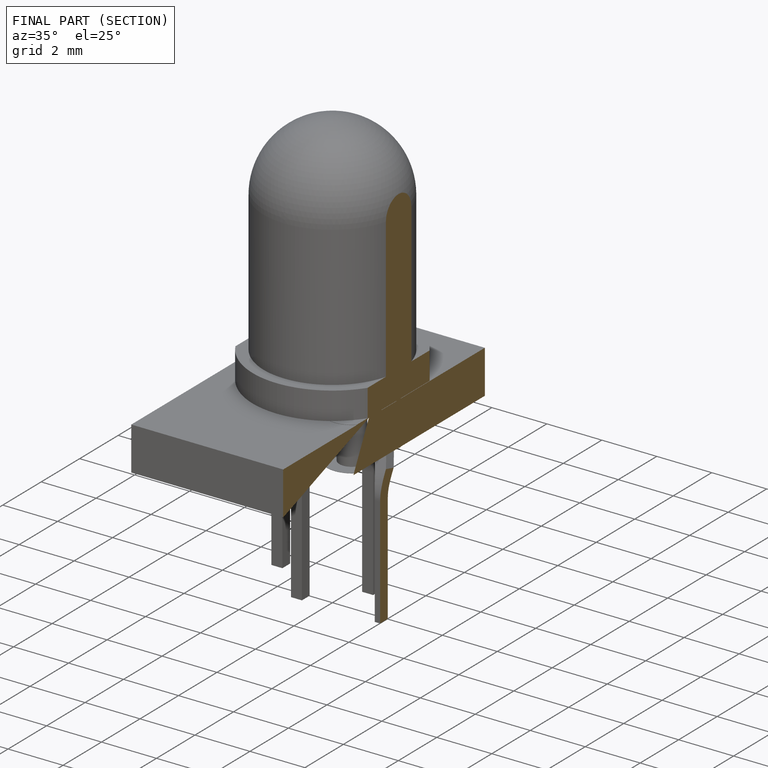
[diagram: finished part — half-section view (interior)]
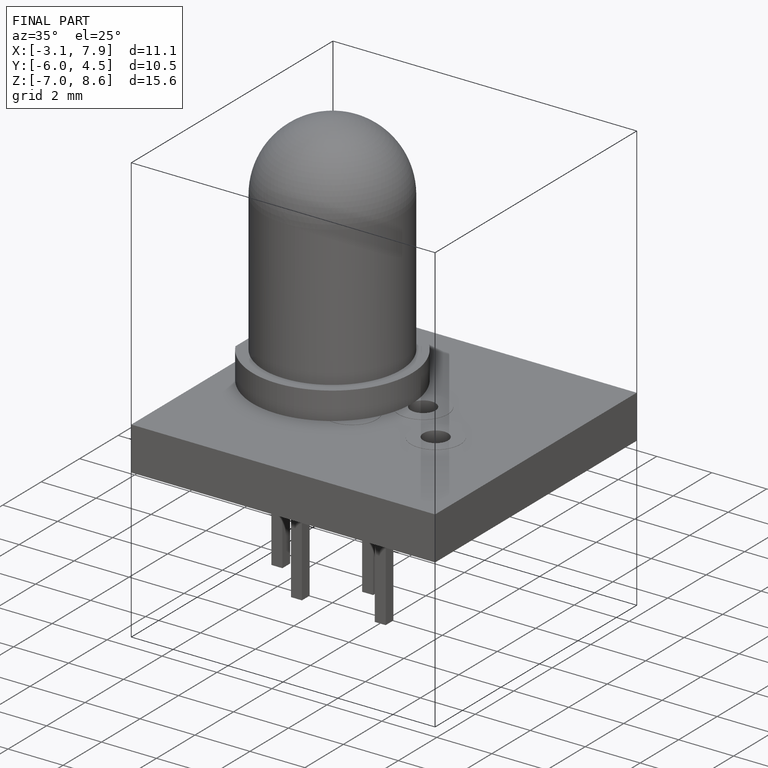
[diagram: finished part — iso view with bounding-box wireframe]
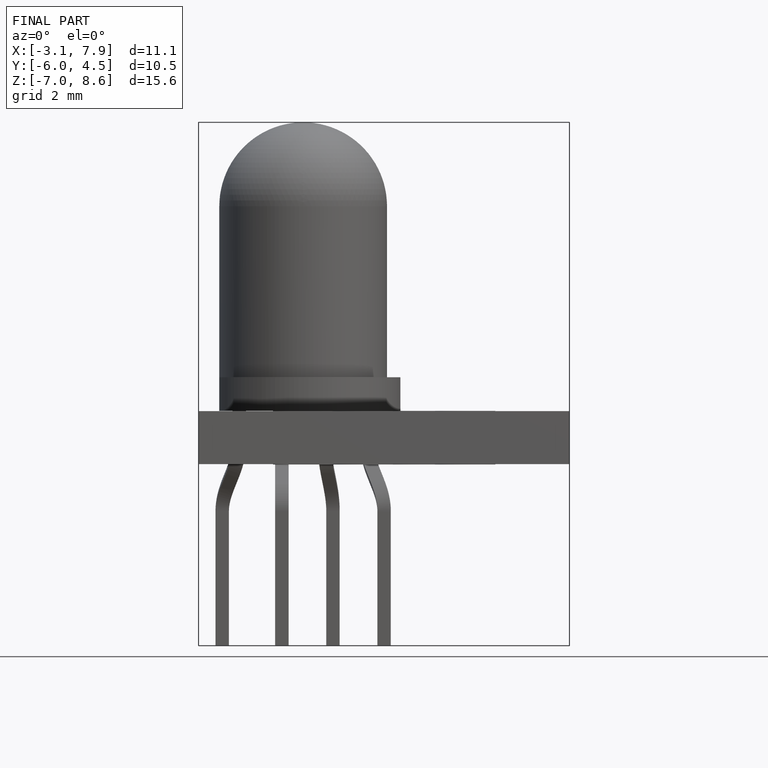
[diagram: finished part — front view with bounding-box wireframe]
